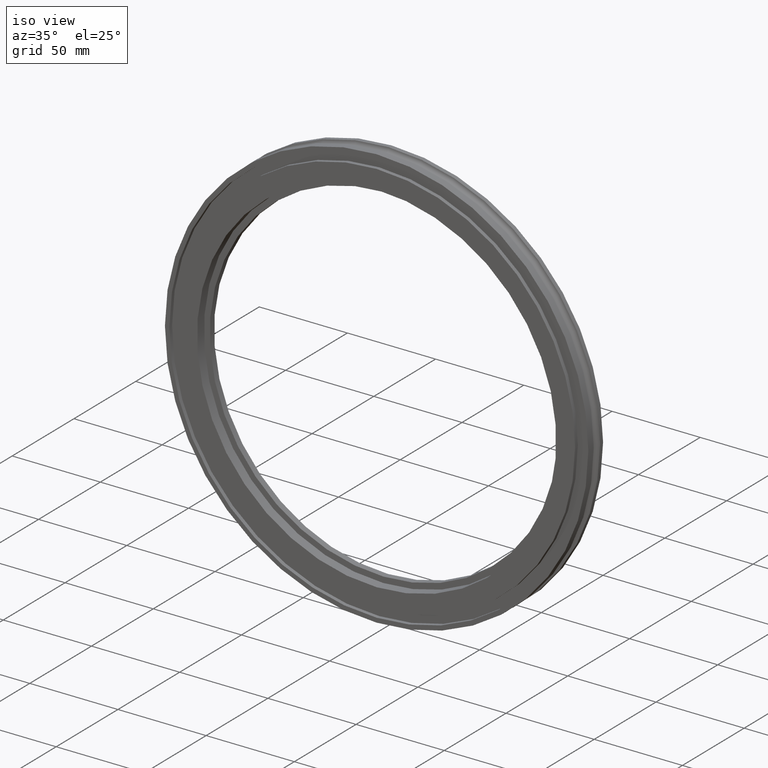
[diagram: clean part render]
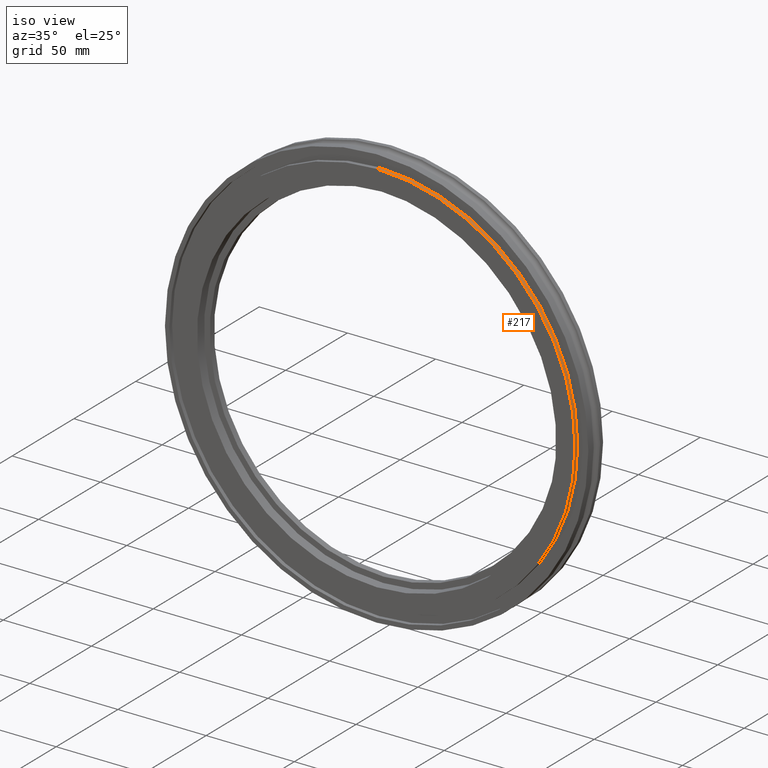
[diagram: same view with one face highlighted and labeled with its STEP entity id]
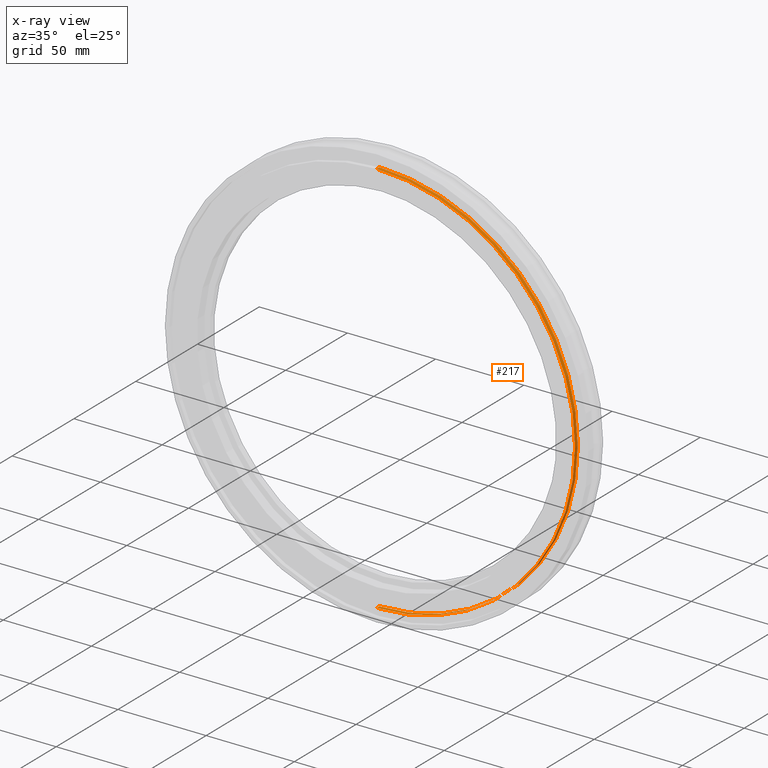
[diagram: x-ray of the same camera — body ghosted, the highlighted face saturated]
A machine part, iso view. The second image highlights one B-rep face of the part: STEP entity #217.
The next image is the same camera in x-ray: the body ghosted, the highlighted face saturated — about 0% of this face is hidden behind the body in this view.
In plain terms, the highlighted cylindrical surface (partial cylindrical patch) has radius 112.497 mm, axis along (-0, 1, -0).
Its self-contained STEP definition (entity closure, byte-faithful):
#29 = DIRECTION ( 'NONE',  ( 0.000000000000000000, 0.000000000000000000, 1.000000000000000000 ) ) ;
#38 = DIRECTION ( 'NONE',  ( -0.000000000000000000, 1.000000000000000000, -0.000000000000000000 ) ) ;
#50 = EDGE_CURVE ( 'NONE', #430, #581, #150, .T. ) ;
#67 = CARTESIAN_POINT ( 'NONE',  ( 0.000000000000000000, -0.4700000000000000289, 0.000000000000000000 ) ) ;
#83 = LINE ( 'NONE', #468, #246 ) ;
#90 = CARTESIAN_POINT ( 'NONE',  ( 0.000000000000000000, -0.3850000000000000089, 0.000000000000000000 ) ) ;
#93 = VERTEX_POINT ( 'NONE', #339 ) ;
#110 = EDGE_CURVE ( 'NONE', #581, #474, #83, .T. ) ;
#138 = CIRCLE ( 'NONE', #555, 4.429000000000000270 ) ;
#150 = CIRCLE ( 'NONE', #508, 4.429000000000000270 ) ;
#154 = CARTESIAN_POINT ( 'NONE',  ( 5.423960673423627301E-16, -0.4700000000000000289, -4.429000000000000270 ) ) ;
#155 = FACE_OUTER_BOUND ( 'NONE', #317, .T. ) ;
#159 = LINE ( 'NONE', #267, #614 ) ;
#201 = DIRECTION ( 'NONE',  ( -0.000000000000000000, 1.000000000000000000, -0.000000000000000000 ) ) ;
#217 = ADVANCED_FACE ( 'NONE', ( #155 ), #305, .T. ) ;
#225 = ORIENTED_EDGE ( 'NONE', *, *, #381, .F. ) ;
#233 = DIRECTION ( 'NONE',  ( 0.000000000000000000, 0.000000000000000000, 1.000000000000000000 ) ) ;
#246 = VECTOR ( 'NONE', #201, 39.37007874015748143 ) ;
#267 = CARTESIAN_POINT ( 'NONE',  ( 0.000000000000000000, 0.000000000000000000, 4.429000000000000270 ) ) ;
#305 = CYLINDRICAL_SURFACE ( 'NONE', #343, 4.429000000000000270 ) ;
#317 = EDGE_LOOP ( 'NONE', ( #696, #608, #483, #225 ) ) ;
#339 = CARTESIAN_POINT ( 'NONE',  ( 0.000000000000000000, -0.3850000000000000089, 4.429000000000000270 ) ) ;
#342 = CARTESIAN_POINT ( 'NONE',  ( 5.423960673423627301E-16, -0.3850000000000000089, -4.429000000000000270 ) ) ;
#343 = AXIS2_PLACEMENT_3D ( 'NONE', #362, #38, #679 ) ;
#362 = CARTESIAN_POINT ( 'NONE',  ( 0.000000000000000000, 0.000000000000000000, 0.000000000000000000 ) ) ;
#381 = EDGE_CURVE ( 'NONE', #430, #93, #159, .T. ) ;
#419 = CARTESIAN_POINT ( 'NONE',  ( 0.000000000000000000, -0.4700000000000000289, 4.429000000000000270 ) ) ;
#430 = VERTEX_POINT ( 'NONE', #419 ) ;
#445 = DIRECTION ( 'NONE',  ( -0.000000000000000000, 1.000000000000000000, -0.000000000000000000 ) ) ;
#468 = CARTESIAN_POINT ( 'NONE',  ( 5.423960673423627301E-16, 0.000000000000000000, -4.429000000000000270 ) ) ;
#474 = VERTEX_POINT ( 'NONE', #342 ) ;
#483 = ORIENTED_EDGE ( 'NONE', *, *, #588, .F. ) ;
#486 = DIRECTION ( 'NONE',  ( -0.000000000000000000, 1.000000000000000000, -0.000000000000000000 ) ) ;
#508 = AXIS2_PLACEMENT_3D ( 'NONE', #67, #445, #233 ) ;
#555 = AXIS2_PLACEMENT_3D ( 'NONE', #90, #573, #29 ) ;
#573 = DIRECTION ( 'NONE',  ( -0.000000000000000000, 1.000000000000000000, -0.000000000000000000 ) ) ;
#581 = VERTEX_POINT ( 'NONE', #154 ) ;
#588 = EDGE_CURVE ( 'NONE', #93, #474, #138, .T. ) ;
#608 = ORIENTED_EDGE ( 'NONE', *, *, #110, .T. ) ;
#614 = VECTOR ( 'NONE', #486, 39.37007874015748143 ) ;
#679 = DIRECTION ( 'NONE',  ( 0.000000000000000000, 0.000000000000000000, 1.000000000000000000 ) ) ;
#696 = ORIENTED_EDGE ( 'NONE', *, *, #50, .T. ) ;